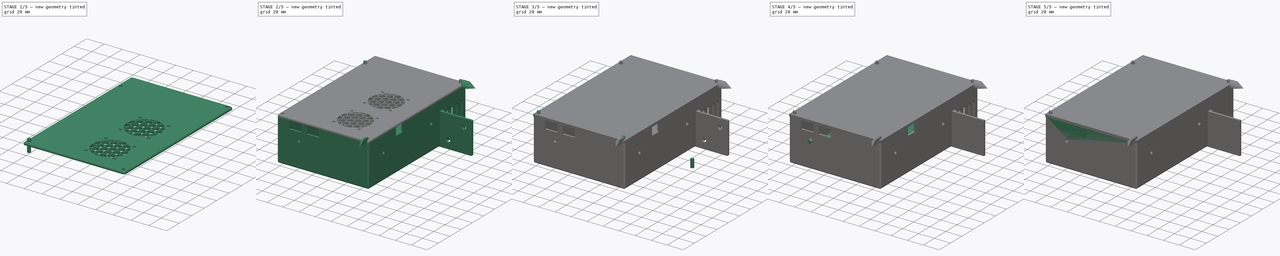
[diagram: build sequence overview — one tinted view per stage of 5, left to right]
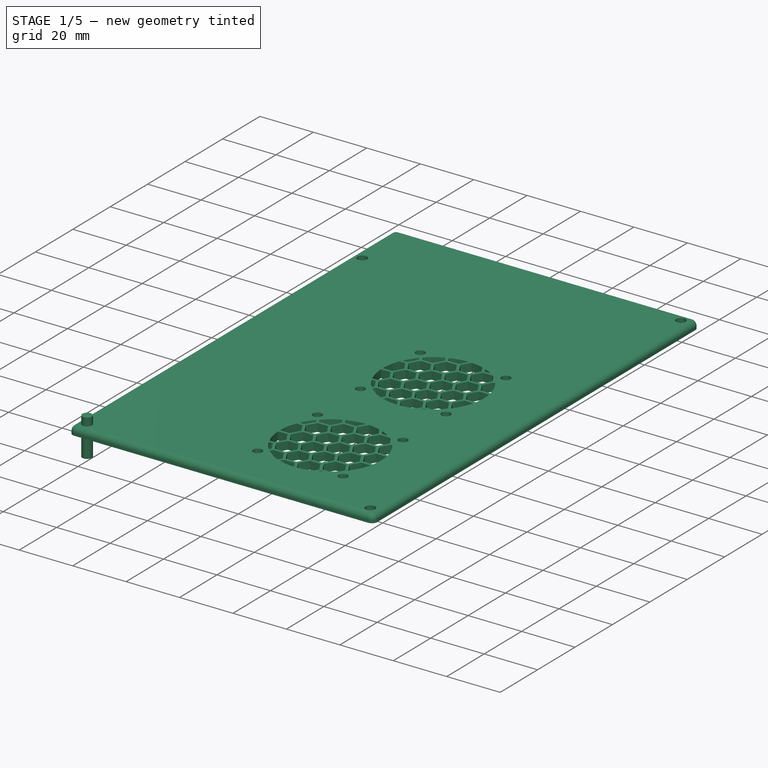
[diagram: stage 1 of 5 — iso view after this stage's code; geometry added in this stage tinted green]
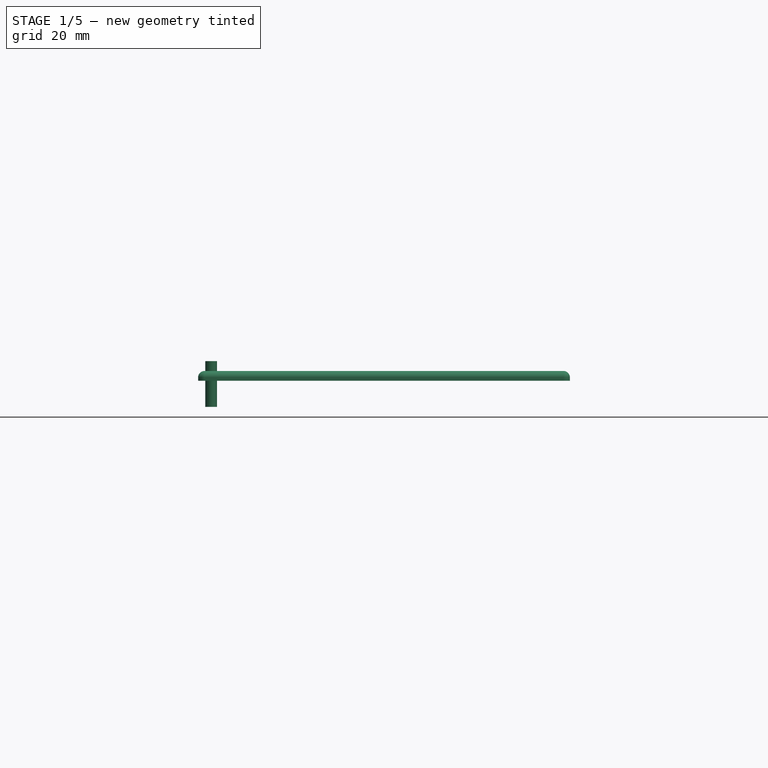
[diagram: stage 1 of 5 — front view after this stage's code; geometry added in this stage tinted green]
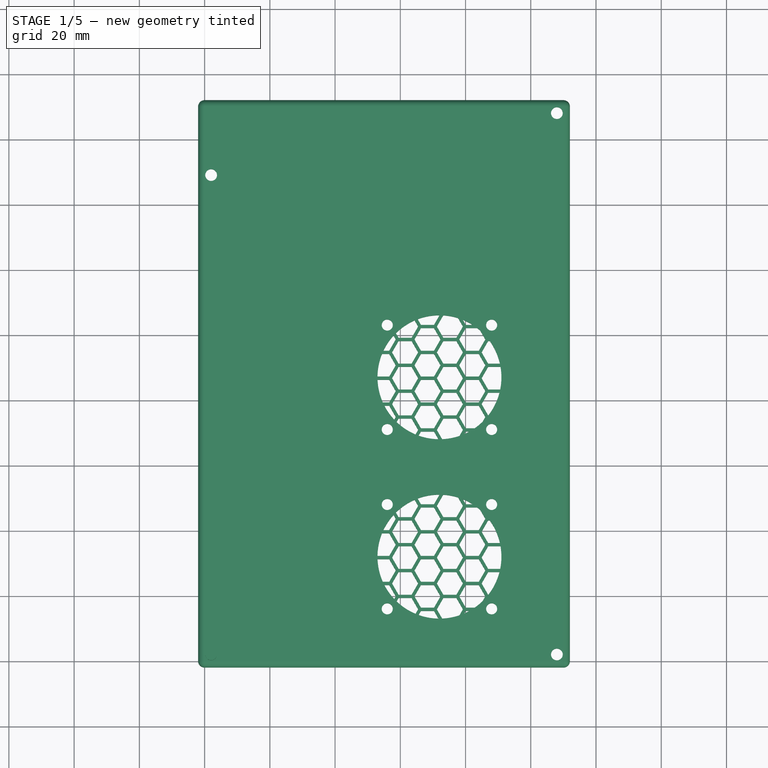
[diagram: stage 1 of 5 — top view after this stage's code; geometry added in this stage tinted green]
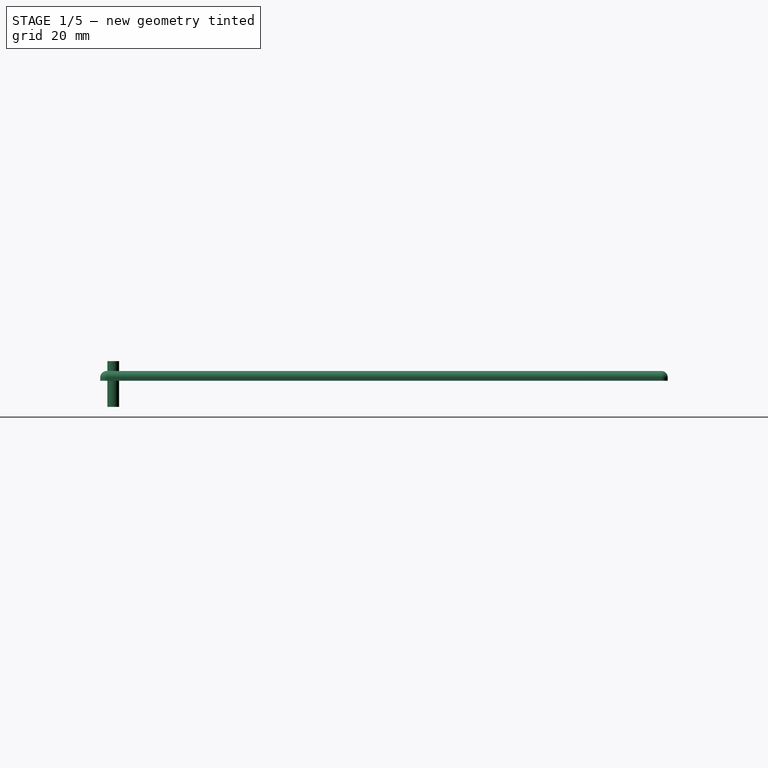
[diagram: stage 1 of 5 — right view after this stage's code; geometry added in this stage tinted green]
FCSTD DOCUMENT  (FreeCAD 0.17R13528 (Git))
Label: mks_case_v1
License: All rights reserved
LicenseURL: http://en.wikipedia.org/wiki/All_rights_reserved
objects: Part::FeaturePython×21, Part::MultiFuse×9, Part::Box×7, Part::Cylinder×7, Part::Cut×7, App::DocumentObjectGroup×4, Part::Prism×4, Part::Feature×4, Part::Fillet×3, Part::Thickness×1, Part::Cone×1, Part::Fuse×1, PartDesign::FeatureBase×1, Sketcher::SketchObject×1, PartDesign::Pocket×1, PartDesign::Body×1
note: 70 computed .brp shape members not serialized (recipe doc carries the construction recipe); baked Part::Feature solids carry a one-line shape summary decoded from their .brp

FEATURE [Part::Cylinder] Cylinder005
  Angle = 360
  AttacherType = Attacher::AttachEngine3D
  Height = 14
  Placement = pos=(2,2,42) rot=(0,0,1;0rad)
  Radius = 1.8
FEATURE [Part::Feature] Common002  label="grid stencil"
  Placement = pos=(30,0,45) rot=(0,0,1;0rad)
  shape: bbox 38 x 38 x 10 mm, 213 faces, 29 solids (baked)
FEATURE [Part::Box] Box004  label="top_001"
  AttacherType = Attacher::AttachEngine3D
  Height = 3
  Length = 114
  Placement = pos=(-2,-2,50) rot=(0,0,1;0rad)
  Width = 174
FEATURE [Part::Cylinder] Cylinder006
  Angle = 360
  AttacherType = Attacher::AttachEngine3D
  Height = 14
  Placement = pos=(2,2,42) rot=(0,0,1;0rad)
  Radius = 1.8
FEATURE [Part::FeaturePython] Clone016  label="Clone of Cylinder013"  # Draft clone (typed FeaturePython)
  Objects = -> [Cylinder006]
  Placement = pos=(108,2,42) rot=(0,0,1;0rad)
  Scale = (1,1,1)
FEATURE [Part::FeaturePython] Clone017  label="Clone of Cylinder014"  # Draft clone (typed FeaturePython)
  Objects = -> [Cylinder006]
  Placement = pos=(2,149,42) rot=(0,0,1;0rad)
  Scale = (1,1,1)
FEATURE [Part::FeaturePython] Clone018  label="Clone of Cylinder015"  # Draft clone (typed FeaturePython)
  Objects = -> [Cylinder006]
  Placement = pos=(108,168,42) rot=(0,0,1;0rad)
  Scale = (1,1,1)
FEATURE [Part::MultiFuse] Fusion008  label="top mount hole cutouts003"
  Refine = true
  Shapes = -> [Cylinder006,Clone016,Clone018,Clone017]
FEATURE [Part::Feature] Common003  label="grid stencil001"
  Placement = pos=(30,55,45) rot=(0,0,1;0rad)
  shape: bbox 38 x 38 x 10 mm, 213 faces, 29 solids (baked)
FEATURE [Part::Cut] Cut005
  Base = -> Box004
  Refine = true
  Tool = -> Fusion008
FEATURE [Part::Cut] Cut006
  Base = -> Cut005
  Refine = true
  Tool = -> Common003
FEATURE [Part::Cut] Cut007
  Base = -> Cut006
  Refine = true
  Tool = -> Common002
FEATURE [PartDesign::FeatureBase] BaseFeature
  BaseFeature = -> Cut007
FEATURE [Sketcher::SketchObject] Sketch
  MapMode = 5
  Placement = pos=(0,0,53) rot=(0,0,1;0rad)
  Support = -> [BaseFeature]
  sketch-geometry (16):
    g0: Circle CenterX=56 CenterY=48 CenterZ=0 NormalX=0 NormalY=0 NormalZ=1 AngleXU=0 Radius=1.7
    g1: Circle CenterX=88 CenterY=48 CenterZ=0 NormalX=0 NormalY=0 NormalZ=1 AngleXU=0 Radius=1.7
    g2: Circle CenterX=88 CenterY=16 CenterZ=0 NormalX=0 NormalY=0 NormalZ=1 AngleXU=0 Radius=1.7
    g3: Circle CenterX=56 CenterY=16 CenterZ=0 NormalX=0 NormalY=0 NormalZ=1 AngleXU=0 Radius=1.7
    g4: Circle CenterX=56 CenterY=71 CenterZ=0 NormalX=0 NormalY=0 NormalZ=1 AngleXU=0 Radius=1.7
    g5: Circle CenterX=88 CenterY=71 CenterZ=0 NormalX=0 NormalY=0 NormalZ=1 AngleXU=0 Radius=1.7
    g6: Circle CenterX=88 CenterY=103 CenterZ=0 NormalX=0 NormalY=0 NormalZ=1 AngleXU=0 Radius=1.7
    g7: Circle CenterX=56 CenterY=103 CenterZ=0 NormalX=0 NormalY=0 NormalZ=1 AngleXU=0 Radius=1.7
    g8: LineSegment [constr] StartX=56 StartY=103 StartZ=0 EndX=88 EndY=103 EndZ=0
    g9: LineSegment [constr] StartX=88 StartY=103 StartZ=0 EndX=88 EndY=71 EndZ=0
    g10: LineSegment [constr] StartX=88 StartY=71 StartZ=0 EndX=56 EndY=71 EndZ=0
    g11: LineSegment [constr] StartX=56 StartY=71 StartZ=0 EndX=56 EndY=103 EndZ=0
    g12: LineSegment [constr] StartX=56 StartY=48 StartZ=0 EndX=88 EndY=48 EndZ=0
    g13: LineSegment [constr] StartX=88 StartY=48 StartZ=0 EndX=88 EndY=16 EndZ=0
    g14: LineSegment [constr] StartX=88 StartY=16 StartZ=0 EndX=56 EndY=16 EndZ=0
    g15: LineSegment [constr] StartX=56 StartY=16 StartZ=0 EndX=56 EndY=48 EndZ=0
  constraints (40):
    c: Radius(g7) = 1.7
    c: Equal(g7,g6)
    c: Equal(g6,g5)
    c: Equal(g5,g4)
    c: Equal(g7,g0)
    c: Equal(g0,g1)
    c: Equal(g1,g2)
    c: Equal(g2,g3)
    c: Coincident(g8,g9)
    c: Coincident(g9,g10)
    c: Coincident(g10,g11)
    c: Coincident(g11,g8)
    c: Horizontal(g8)
    c: Horizontal(g10)
    c: Vertical(g9)
    c: Vertical(g11)
    c: Equal(g8,g11)
    c: DistanceX(g8,g8) = 32
    c: Coincident(g7,g8)
    c: Coincident(g6,g8)
    c: Coincident(g5,g9)
    c: Coincident(g4,g10)
    c: Coincident(g12,g13)
    c: Coincident(g13,g14)
    c: Coincident(g14,g15)
    c: Coincident(g15,g12)
    c: Horizontal(g12)
    c: Horizontal(g14)
    c: Vertical(g13)
    c: Vertical(g15)
    c: Equal(g12,g15)
    c: Equal(g15,g10)
    c: Coincident(g0,g12)
    c: Coincident(g1,g12)
    c: Coincident(g3,g14)
    c: Coincident(g2,g13)
    c: DistanceX(g-1,g3) = 56
    c: DistanceX(g-1,g4) = 56
    c: DistanceY(g3,g4) = 55
    c: DistanceY(g-1,g3) = 16
FEATURE [PartDesign::Pocket] Pocket
  BaseFeature = -> BaseFeature
  Length = 3
  Length2 = 100
  Profile = -> Sketch
  Refine = true
  Type = 0
FEATURE [PartDesign::Body] Body
  BaseFeature = -> Cut007
  Group = -> [BaseFeature,Sketch,Pocket]
  Origin = -> Origin
  Tip = -> Pocket
FEATURE [App::DocumentObjectGroup] Group004  label="simple_top_parts"
  Group = -> [Cut003,Cut007,Body]
FEATURE [Part::Fillet] Fillet002  label="simple top with grid"
  Base = -> Pocket
  Edges = 8 edges r=2: [Edge1,Edge2,Edge3,Edge6,Edge7,Edge8,Edge9,Edge333]
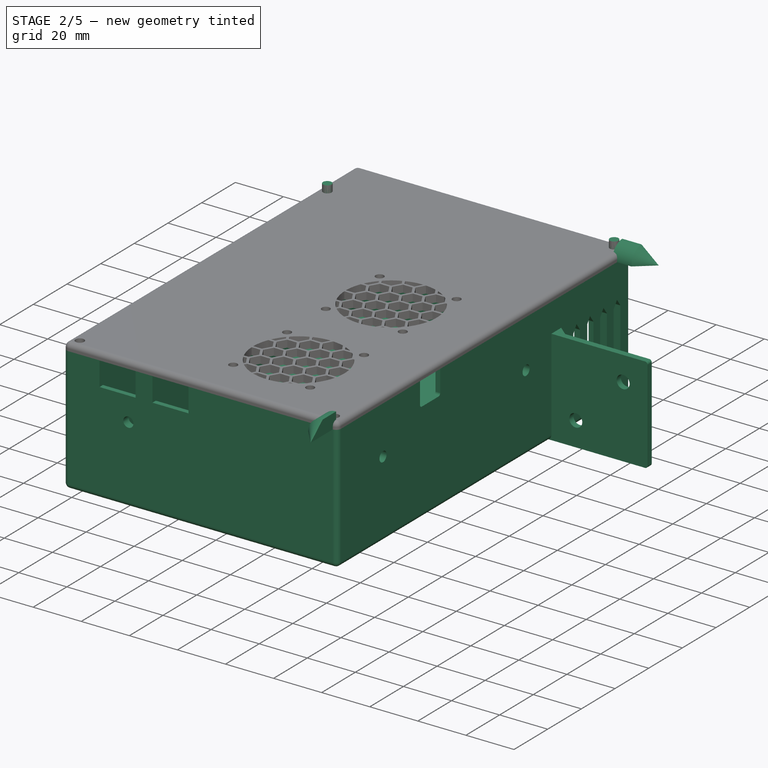
[diagram: stage 2 of 5 — iso view after this stage's code; geometry added in this stage tinted green]
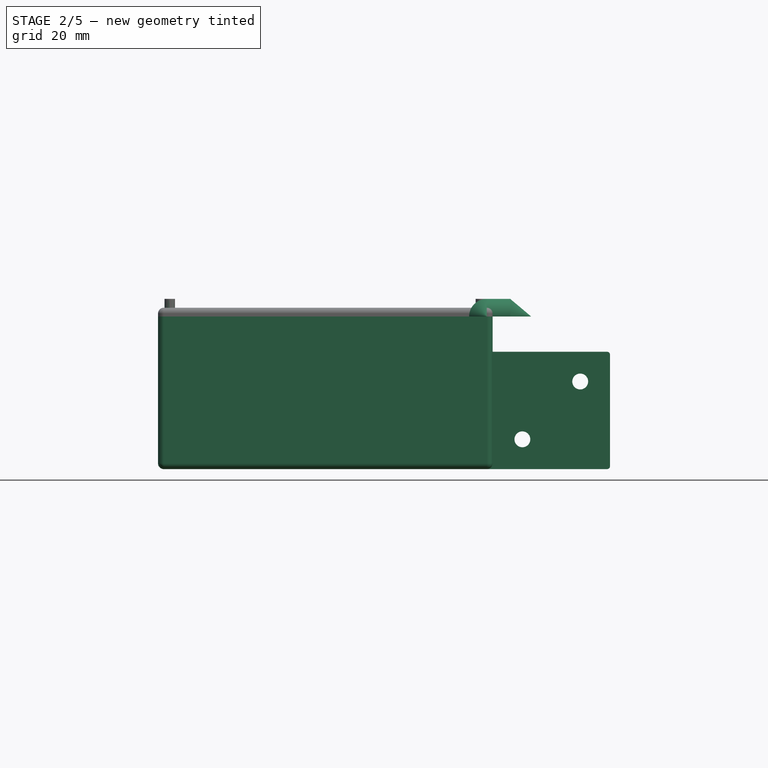
[diagram: stage 2 of 5 — front view after this stage's code; geometry added in this stage tinted green]
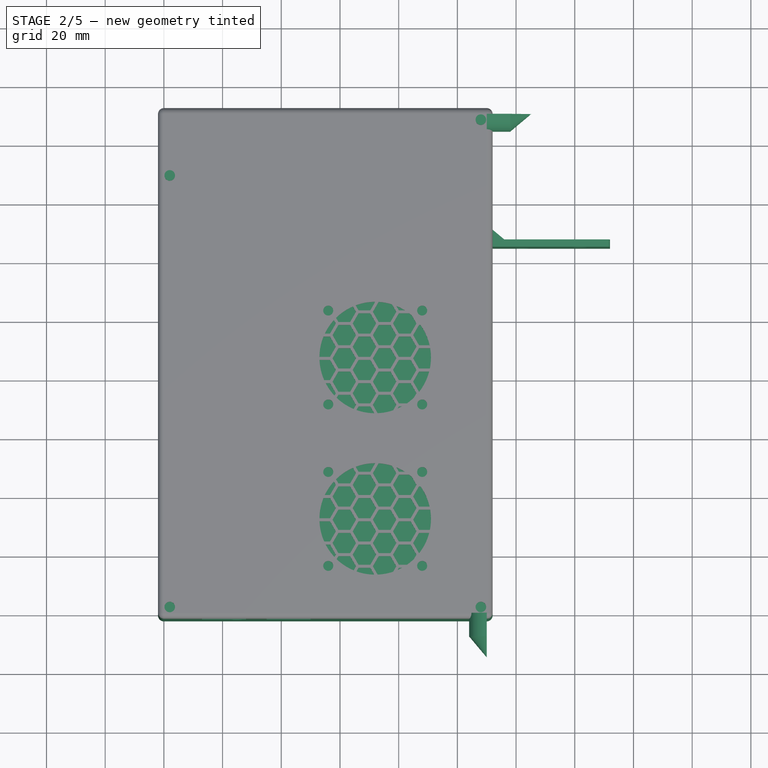
[diagram: stage 2 of 5 — top view after this stage's code; geometry added in this stage tinted green]
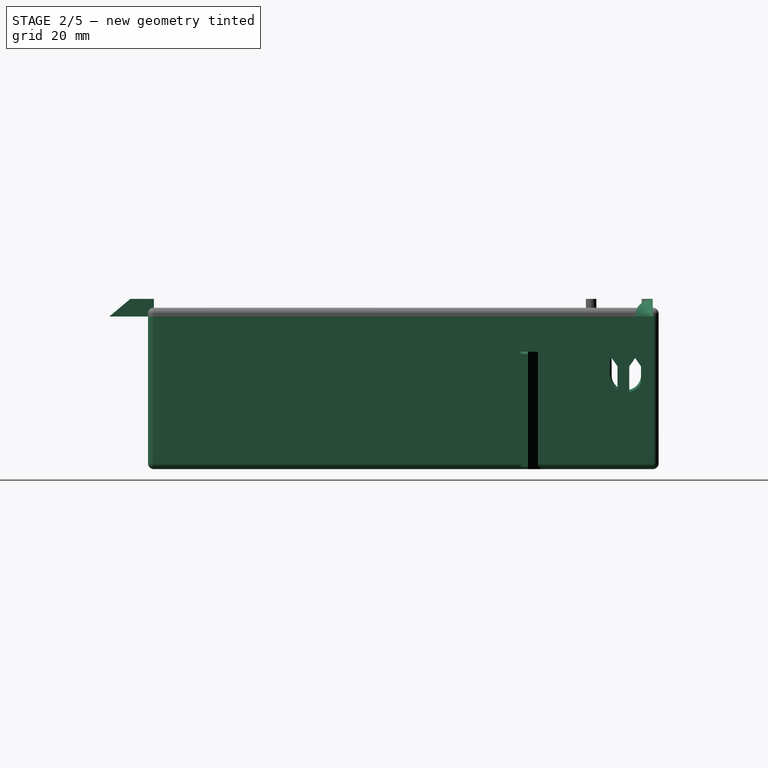
[diagram: stage 2 of 5 — right view after this stage's code; geometry added in this stage tinted green]
FEATURE [App::DocumentObjectGroup] Group  label="bottom_parts"
  Group = -> [Cut,Fusion002]
FEATURE [Part::Fillet] Fillet  label="Fillet Cable cutout and more"
  Edges = 10 edges: [Edge108 r=1,Edge110 r=1,Edge233 r=2,Edge234 r=2,Edge235 r=2,Edge245 r=1,Edge247 r=1,Edge248 r=1,Edge272 r=1,Edge389 r=1]
FEATURE [Part::FeaturePython] Clone004  label="Clone of corner_mount"  # WARN: FeaturePython — macro-defined, semantics opaque (R4)
  Placement = pos=(110,0,50) rot=(0,0.707107,0.707107;3.14159rad)
  Scale = (1,1,1)
FEATURE [Part::FeaturePython] Clone005  label="Clone of corner_mount001"  # WARN: FeaturePython — macro-defined, semantics opaque (R4)
  Placement = pos=(110,170,50) rot=(0.57735,-0.57735,-0.57735;2.0944rad)
  Scale = (1,1,1)
FEATURE [App::DocumentObjectGroup] Group003  label="top_parts_temp"
  Group = -> [Box003,Fusion003]
FEATURE [Part::MultiFuse] Fusion004  label="case with top mounts"
  Refine = true
  Shapes = -> [Clone005,Clone004,Fillet]
FEATURE [App::DocumentObjectGroup] Konstruktion
  Group = -> [Clone009,Fusion005]
FEATURE [Part::Feature] Cut002
  shape: bbox 114 x 174 x 3 mm, 16 faces (baked)
FEATURE [Part::Cylinder] Cylinder004
  Angle = 360
  AttacherType = Attacher::AttachEngine3D
  Height = 14
  Placement = pos=(2,2,42) rot=(0,0,1;0rad)
  Radius = 1.8
FEATURE [Part::FeaturePython] Clone011  label="Clone of Cylinder008"  # Draft clone (typed FeaturePython)
  Objects = -> [Cylinder004]
  Placement = pos=(108,168,42) rot=(0,0,1;0rad)
  Scale = (1,1,1)
FEATURE [Part::FeaturePython] Clone012  label="Clone of Cylinder009"  # Draft clone (typed FeaturePython)
  Objects = -> [Cylinder004]
  Placement = pos=(2,149,42) rot=(0,0,1;0rad)
  Scale = (1,1,1)
FEATURE [Part::FeaturePython] Clone013  label="Clone of Cylinder010"  # Draft clone (typed FeaturePython)
  Objects = -> [Cylinder005]
  Placement = pos=(108,2,42) rot=(0,0,1;0rad)
  Scale = (1,1,1)
FEATURE [Part::FeaturePython] Clone014  label="Clone of Cylinder011"  # Draft clone (typed FeaturePython)
  Objects = -> [Cylinder005]
  Placement = pos=(108,168,42) rot=(0,0,1;0rad)
  Scale = (1,1,1)
FEATURE [Part::FeaturePython] Clone015  label="Clone of Cylinder012"  # Draft clone (typed FeaturePython)
  Objects = -> [Cylinder005]
  Placement = pos=(2,149,42) rot=(0,0,1;0rad)
  Scale = (1,1,1)
FEATURE [Part::MultiFuse] Fusion007  label="top mount hole cutouts002"
  Refine = true
  Shapes = -> [Cylinder005,Clone013,Clone014,Clone015]
FEATURE [Part::Cut] Cut004  label="bottom part"
  Base = -> Fusion004
  Refine = true
  Tool = -> Fusion007
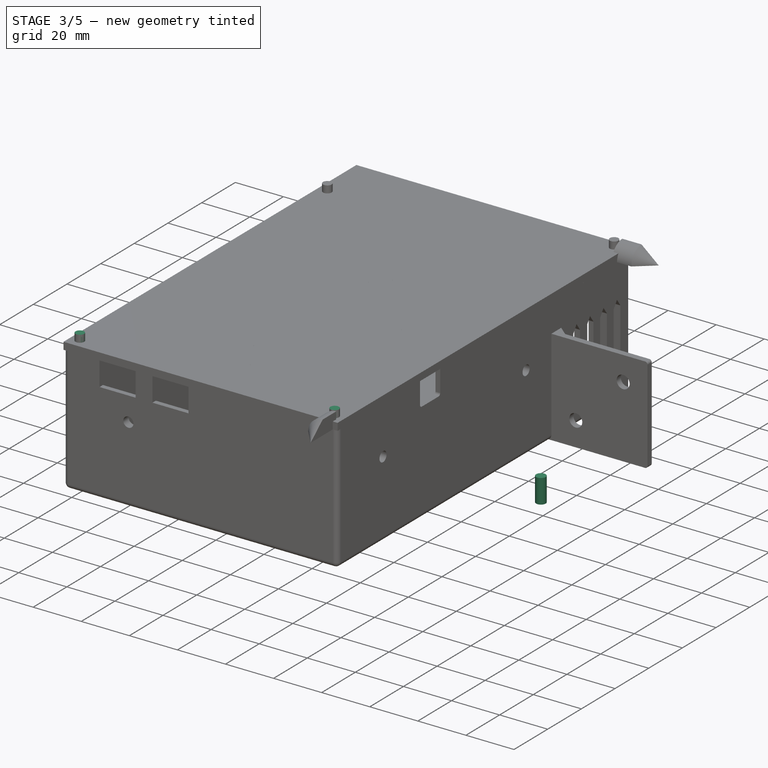
[diagram: stage 3 of 5 — iso view after this stage's code; geometry added in this stage tinted green]
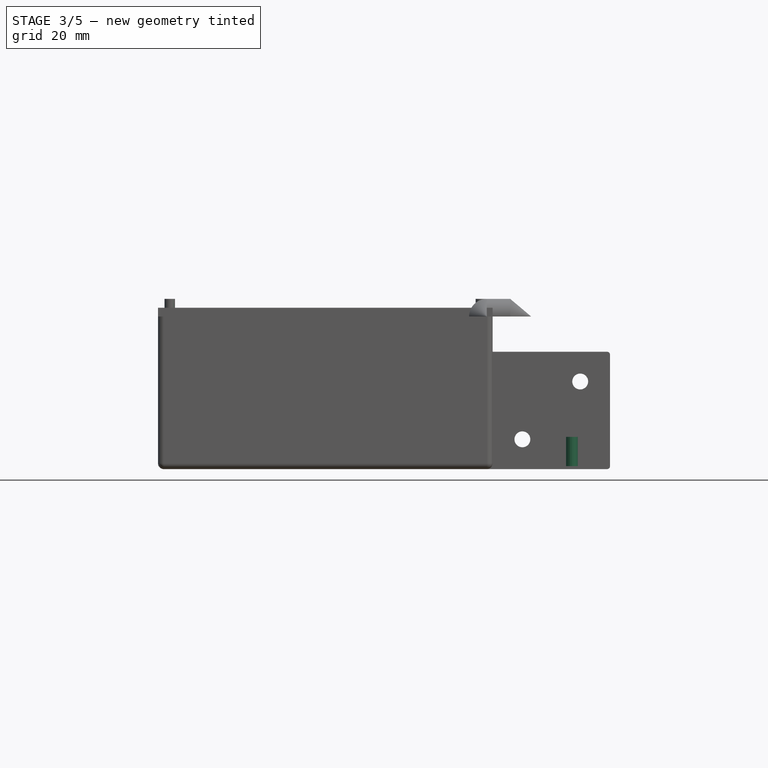
[diagram: stage 3 of 5 — front view after this stage's code; geometry added in this stage tinted green]
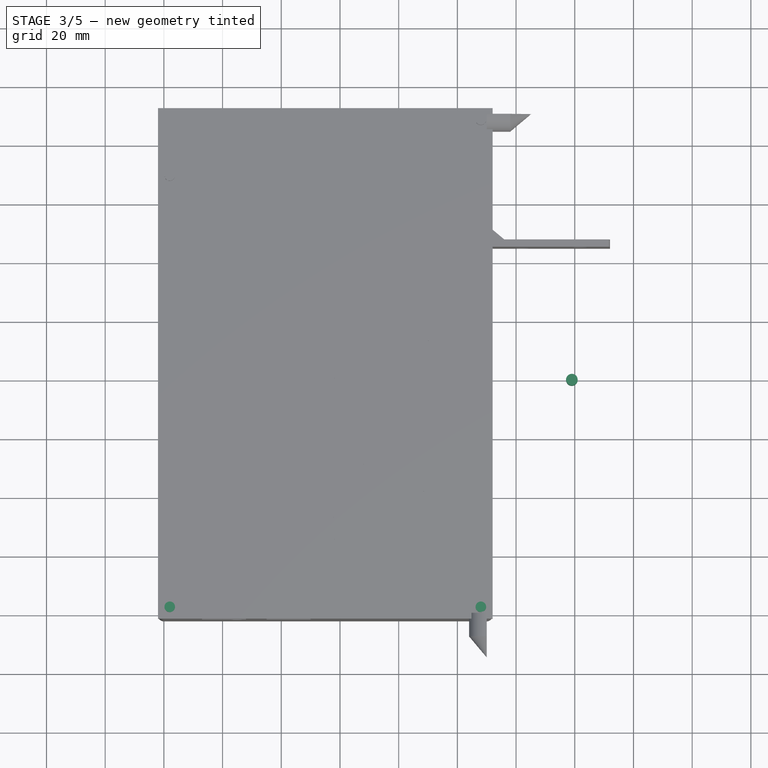
[diagram: stage 3 of 5 — top view after this stage's code; geometry added in this stage tinted green]
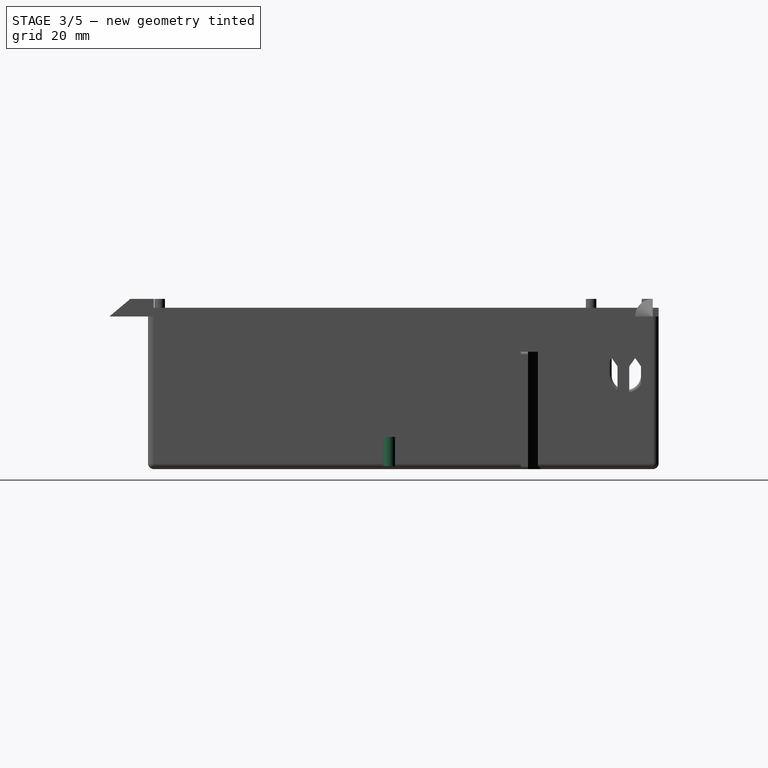
[diagram: stage 3 of 5 — right view after this stage's code; geometry added in this stage tinted green]
FEATURE [Part::Prism] prism002
  AttacherType = Attacher::AttachEngine3D
  Circumradius = 2
  Height = 10
  Placement = pos=(4,80.23,-1) rot=(0,0,1;0rad)
  Polygon = 20
FEATURE [Part::Prism] prism003
  AttacherType = Attacher::AttachEngine3D
  Circumradius = 2
  Height = 10
  Placement = pos=(139,80.23,-1) rot=(0,0,1;0rad)
  Polygon = 20
FEATURE [Part::Cylinder] Cylinder003
  Angle = 360
  AttacherType = Attacher::AttachEngine3D
  Height = 14
  Placement = pos=(2,2,42) rot=(0,0,1;0rad)
  Radius = 1.8
FEATURE [Part::FeaturePython] Clone006  label="Clone of Cylinder004"  # Draft clone (typed FeaturePython)
  Objects = -> [Cylinder003]
  Placement = pos=(108,2,42) rot=(0,0,1;0rad)
  Scale = (1,1,1)
FEATURE [Part::FeaturePython] Clone007  label="Clone of Cylinder005"  # Draft clone (typed FeaturePython)
  Objects = -> [Cylinder003]
  Placement = pos=(108,168,42) rot=(0,0,1;0rad)
  Scale = (1,1,1)
FEATURE [Part::FeaturePython] Clone008  label="Clone of Cylinder006"  # Draft clone (typed FeaturePython)
  Objects = -> [Cylinder003]
  Placement = pos=(2,149,42) rot=(0,0,1;0rad)
  Scale = (1,1,1)
FEATURE [Part::MultiFuse] Fusion003  label="top mount hole cutouts"
  Refine = true
  Shapes = -> [Cylinder003,Clone006,Clone007,Clone008]
FEATURE [Part::Box] Box003  label="top_"
  AttacherType = Attacher::AttachEngine3D
  Height = 3
  Length = 114
  Placement = pos=(-2,-2,50) rot=(0,0,1;0rad)
  Width = 174
FEATURE [Part::Feature] Fusion005  label="fan-40x40mm-final"
  Placement = pos=(72,32,40) rot=(0,0,1;0rad)
  shape: bbox 40 x 40 x 10 mm, 172 faces (baked)
FEATURE [Part::FeaturePython] Clone009  label="Clone of fan-40x40mm-final"  # Draft clone (typed FeaturePython)
  Objects = -> [Fusion005]
  Placement = pos=(72,87,40) rot=(0,0,1;0rad)
  Scale = (1,1,1)
FEATURE [Part::FeaturePython] Clone010  label="Clone of Cylinder007"  # Draft clone (typed FeaturePython)
  Objects = -> [Cylinder004]
  Placement = pos=(108,2,42) rot=(0,0,1;0rad)
  Scale = (1,1,1)
FEATURE [Part::MultiFuse] Fusion006  label="top mount hole cutouts001"
  Refine = true
  Shapes = -> [Cylinder004,Clone010,Clone011,Clone012]
FEATURE [Part::Cut] Cut003
  Base = -> Cut002
  Refine = true
  Tool = -> Fusion006
FEATURE [Part::Fillet] Fillet001  label="simple top"
  Base = -> Cut003
  Edges = 8 edges r=2: [Edge1,Edge2,Edge3,Edge6,Edge7,Edge8,Edge9,Edge25]
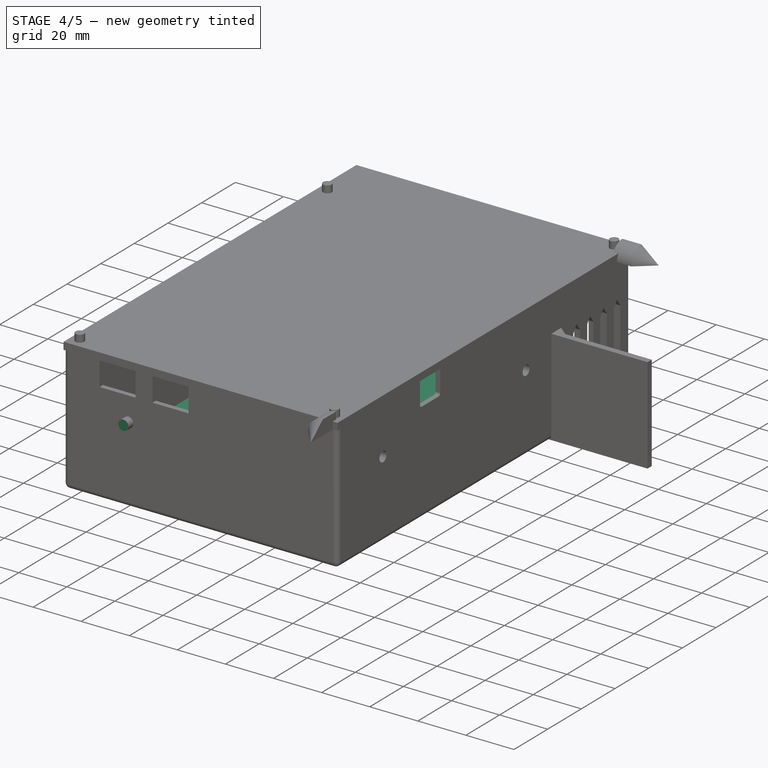
[diagram: stage 4 of 5 — iso view after this stage's code; geometry added in this stage tinted green]
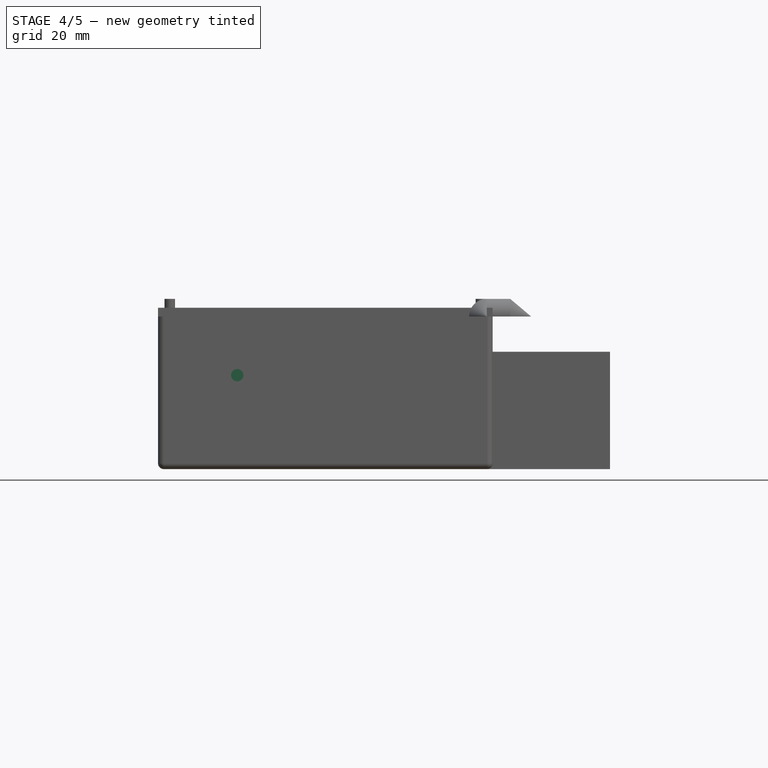
[diagram: stage 4 of 5 — front view after this stage's code; geometry added in this stage tinted green]
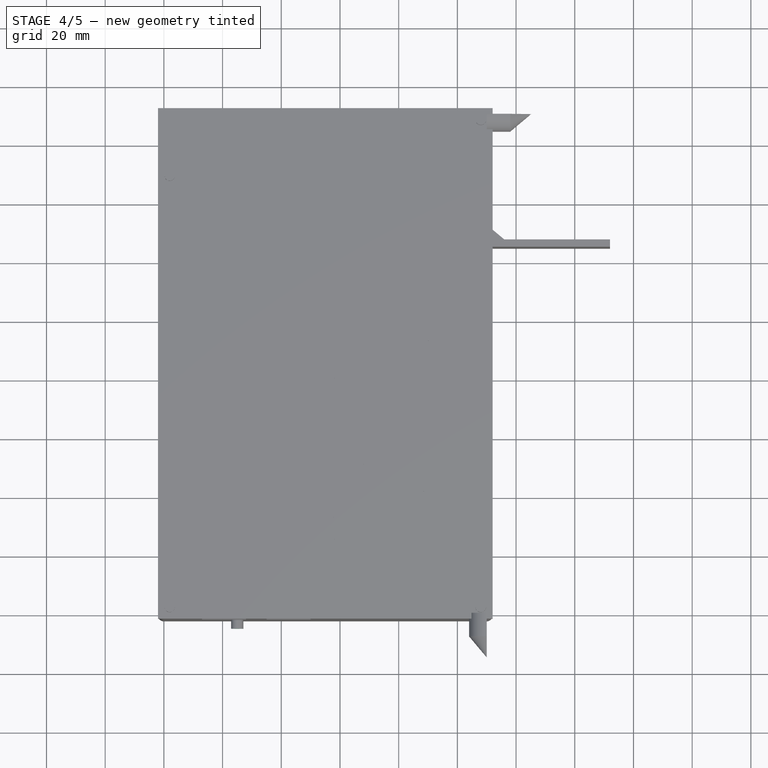
[diagram: stage 4 of 5 — top view after this stage's code; geometry added in this stage tinted green]
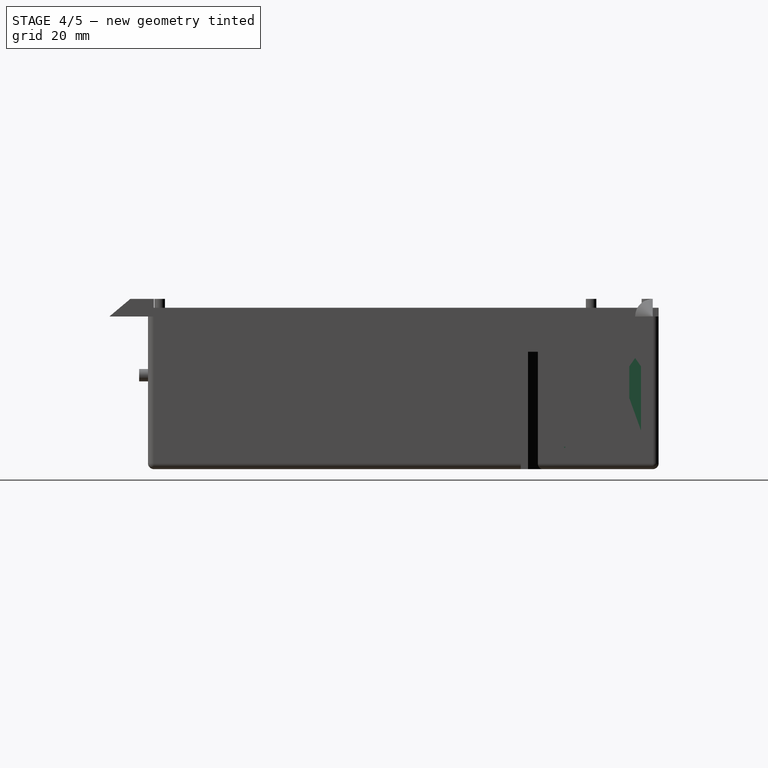
[diagram: stage 4 of 5 — right view after this stage's code; geometry added in this stage tinted green]
FEATURE [Part::Cylinder] Cylinder002
  Angle = 360
  AttacherType = Attacher::AttachEngine3D
  Height = 10
  Placement = pos=(108,25,30) rot=(0,1,0;1.5708rad)
  Radius = 2.1
FEATURE [Part::FeaturePython] Clone003  label="Clone of Cylinder003"  # Draft clone (typed FeaturePython)
  Objects = -> [Cylinder002]
  Placement = pos=(25,5,30) rot=(1,0,0;1.5708rad)
  Scale = (1,1,1)
FEATURE [Part::Box] Box001  label="Flansch"
  AttacherType = Attacher::AttachEngine3D
  Height = 40
  Length = 42
  Placement = pos=(110,125,-2) rot=(0,0,1;0rad)
  Width = 2.5
FEATURE [Part::Box] Box002  label="Cube001"
  AttacherType = Attacher::AttachEngine3D
  Height = 50
  Length = 3
  Placement = pos=(0,152,0) rot=(0,0,1;0rad)
  Width = 18
FEATURE [Part::MultiFuse] Fusion002
  Refine = true
  Shapes = -> [Box002,Box001]
FEATURE [Part::Box] cube
  AttacherType = Attacher::AttachEngine3D
  Height = 1.6
  Length = 143
  Width = 84.23
FEATURE [Part::Box] cube001
  AttacherType = Attacher::AttachEngine3D
  Height = 10.85
  Length = 12
  Placement = pos=(21.71,0,0) rot=(0,0,1;0rad)
  Width = 16.5
FEATURE [Part::Fuse] Group001
  Base = -> cube
  Refine = true
  Tool = -> cube001
FEATURE [Part::Prism] prism
  AttacherType = Attacher::AttachEngine3D
  Circumradius = 2
  Height = 10
  Placement = pos=(4,4,-1) rot=(0,0,1;0rad)
  Polygon = 20
FEATURE [Part::Prism] prism001
  AttacherType = Attacher::AttachEngine3D
  Circumradius = 2
  Height = 10
  Placement = pos=(139,4,-1) rot=(0,0,1;0rad)
  Polygon = 20
FEATURE [Part::MultiFuse] Group002
  Refine = true
  Shapes = -> [prism,prism001,prism002,prism003]
FEATURE [Part::Cut] difference  label="mks gen 14 dummy"
  Base = -> Group001
  Placement = pos=(0.5,147,4) rot=(0,0,-1;1.5708rad)
  Refine = true
  Tool = -> Group002
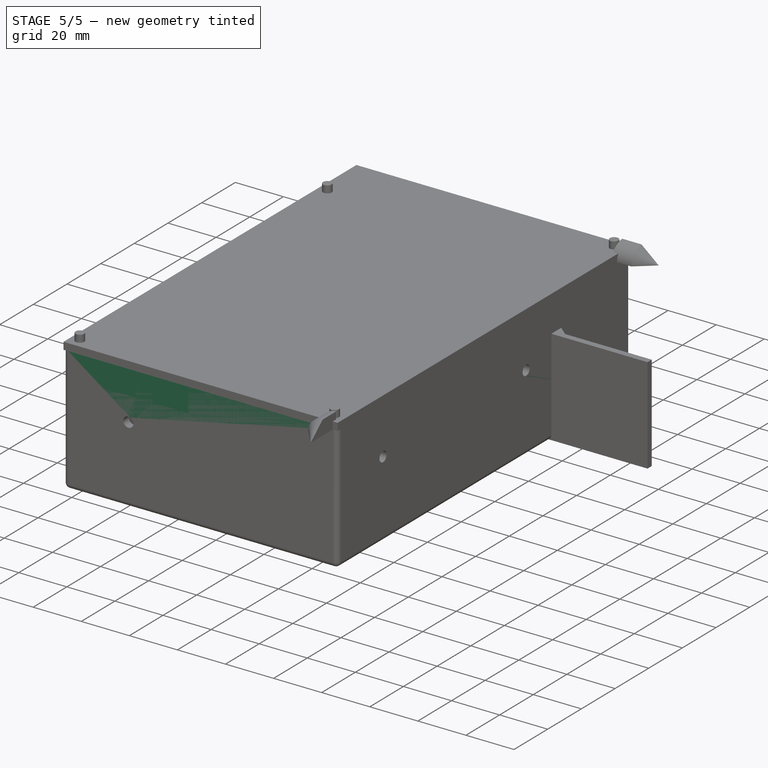
[diagram: stage 5 of 5 — iso view after this stage's code; geometry added in this stage tinted green]
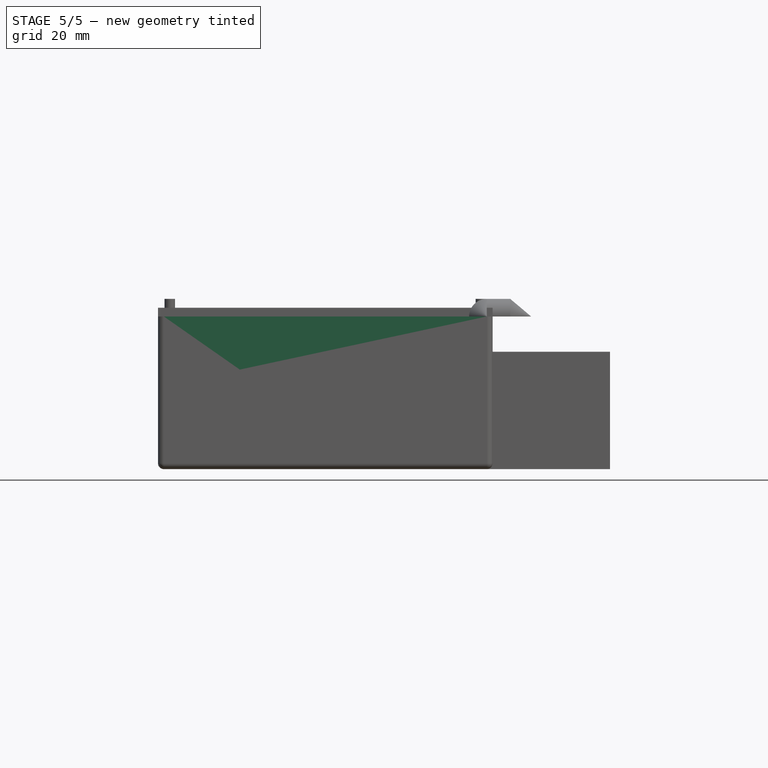
[diagram: stage 5 of 5 — front view after this stage's code; geometry added in this stage tinted green]
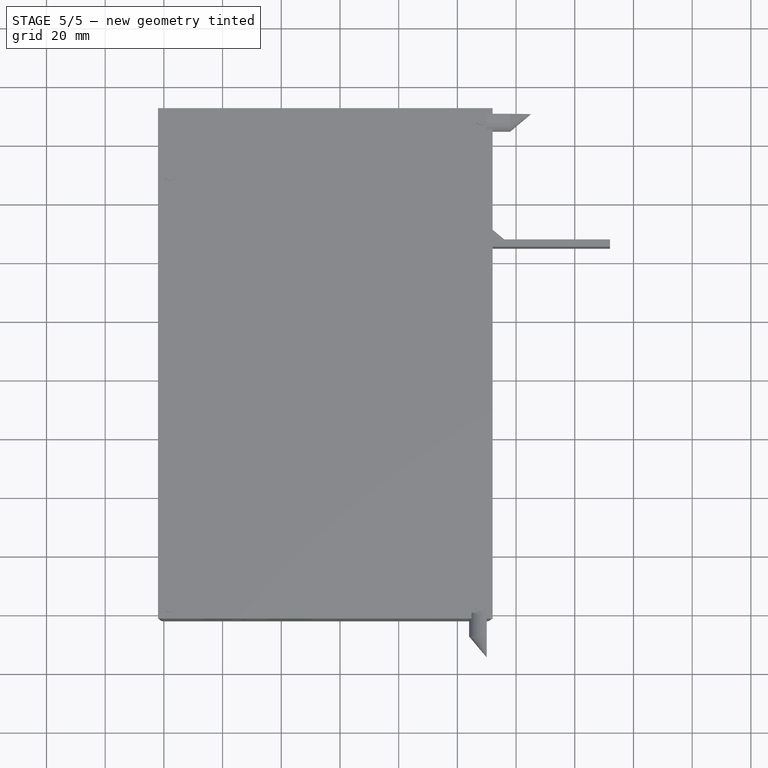
[diagram: stage 5 of 5 — top view after this stage's code; geometry added in this stage tinted green]
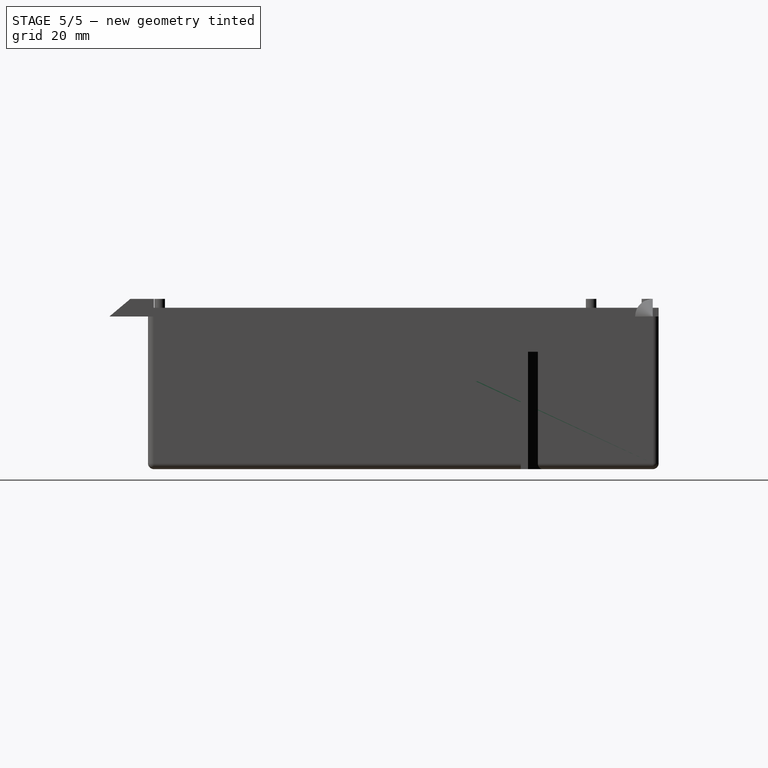
[diagram: stage 5 of 5 — right view after this stage's code; geometry added in this stage tinted green]
FEATURE [Part::Box] Box  label="Cube"
  AttacherType = Attacher::AttachEngine3D
  Height = 50
  Length = 110
  Width = 170
FEATURE [Part::Thickness] Thickness  label="empty_case"
  Faces = -> Box [Face6]
  Intersection = false
  Join = 0
  Mode = 0
  SelfIntersection = false
  Value = 2
FEATURE [Part::Cylinder] Cylinder
  Angle = 360
  AttacherType = Attacher::AttachEngine3D
  Height = 3.5
  Radius = 3.5
FEATURE [Part::Cylinder] Cylinder001
  Angle = 360
  AttacherType = Attacher::AttachEngine3D
  Height = 7
  Placement = pos=(0,0,-3) rot=(0,0,1;0rad)
  Radius = 1.6
FEATURE [Part::FeaturePython] Array  label="mount_points"  # Draft array (typed FeaturePython)
  Angle = 360
  ArrayType = 0
  Axis = (0,0,1)
  Base = -> Cylinder
  Center = (0,0,0)
  Fuse = false
  IntervalAxis = (0,0,0)
  IntervalX = (76,0,0)
  IntervalY = (0,135,0)
  IntervalZ = (0,0,0)
  NumberPolar = 1
  NumberX = 2
  NumberY = 2
  NumberZ = 1
  Placement = pos=(4.5,8,0) rot=(0,0,1;0rad)
FEATURE [Part::FeaturePython] Array001  label="mount_holes"  # Draft array (typed FeaturePython)
  Angle = 360
  ArrayType = 0
  Axis = (0,0,1)
  Base = -> Cylinder001
  Center = (0,0,0)
  Fuse = false
  IntervalAxis = (0,0,0)
  IntervalX = (76,0,0)
  IntervalY = (0,135,0)
  IntervalZ = (0,0,0)
  NumberPolar = 1
  NumberX = 2
  NumberY = 2
  NumberZ = 1
  Placement = pos=(4.5,8,0) rot=(0,0,1;0rad)
FEATURE [Part::Cone] Cone
  Angle = 360
  AttacherType = Attacher::AttachEngine3D
  Height = 1.2
  Placement = pos=(110,25,30) rot=(0,-1,0;1.5708rad)
  Radius1 = 8
  Radius2 = 4
FEATURE [Part::FeaturePython] Clone  label="Clone of Cone"  # Draft clone (typed FeaturePython)
  Objects = -> [Cone]
  Placement = pos=(110,110,30) rot=(0,-1,0;1.5708rad)
  Scale = (1,1,1)
FEATURE [Part::FeaturePython] Clone001  label="Clone of Cylinder002"  # Draft clone (typed FeaturePython)
  Objects = -> [Cylinder002]
  Placement = pos=(108,110,30) rot=(0,1,0;1.5708rad)
  Scale = (1,1,1)
FEATURE [Part::FeaturePython] Clone002  label="Clone of Cone001"  # Draft clone (typed FeaturePython)
  Objects = -> [Cone]
  Placement = pos=(25,0,30) rot=(-1,0,0;1.5708rad)
  Scale = (1,1,1)
FEATURE [Part::MultiFuse] Fusion
  Refine = true
  Shapes = -> [Thickness,Array,Clone,Cone,Clone002]
FEATURE [Part::MultiFuse] Fusion001
  Refine = true
  Shapes = -> [Clone003,Clone001,Cylinder002,Array001]
FEATURE [Part::Cut] Cut  label="case with mount holes"
  Base = -> Fusion
  Refine = true
  Tool = -> Fusion001
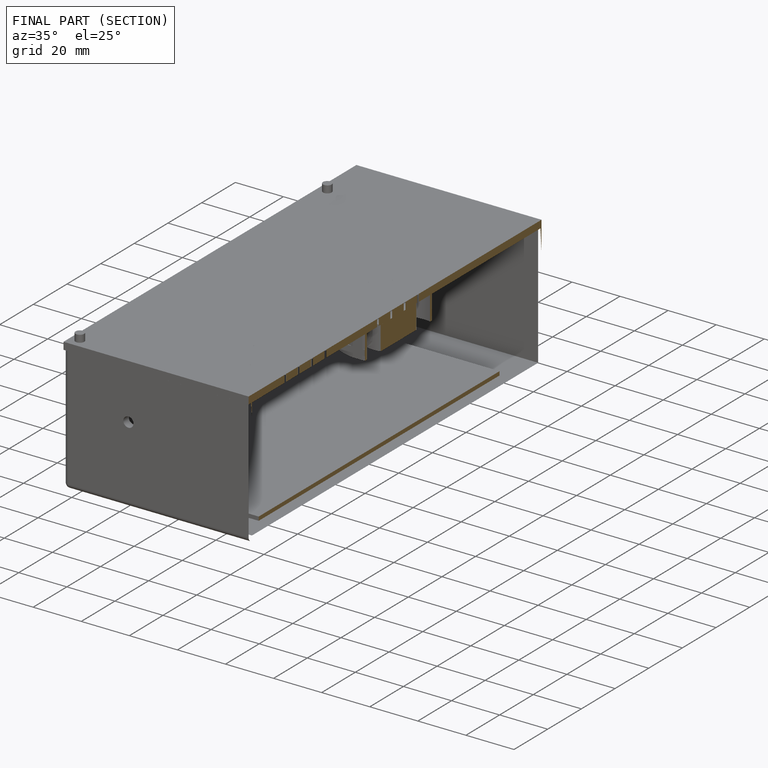
[diagram: finished part — half-section view (interior)]
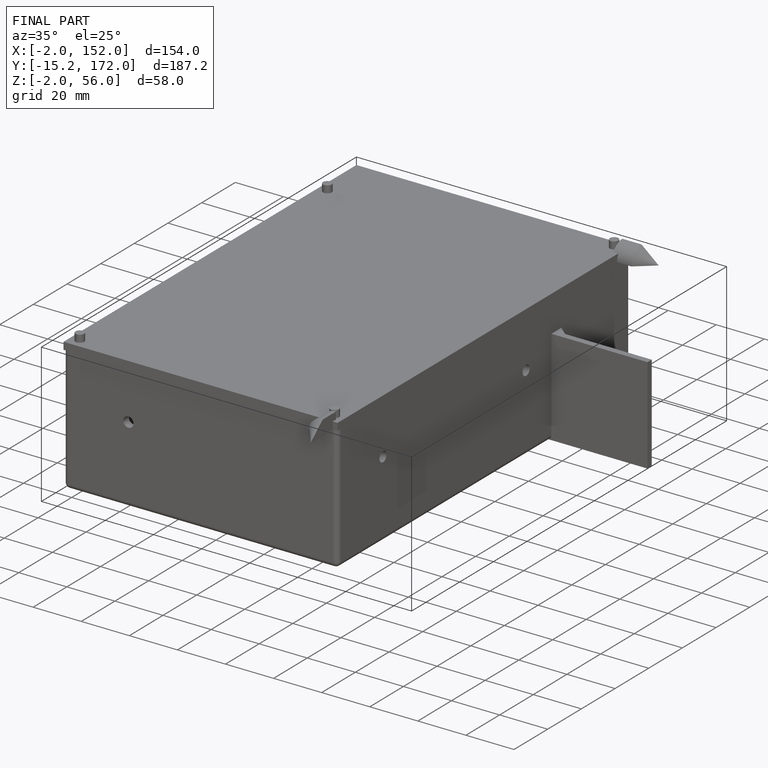
[diagram: finished part — iso view with bounding-box wireframe]
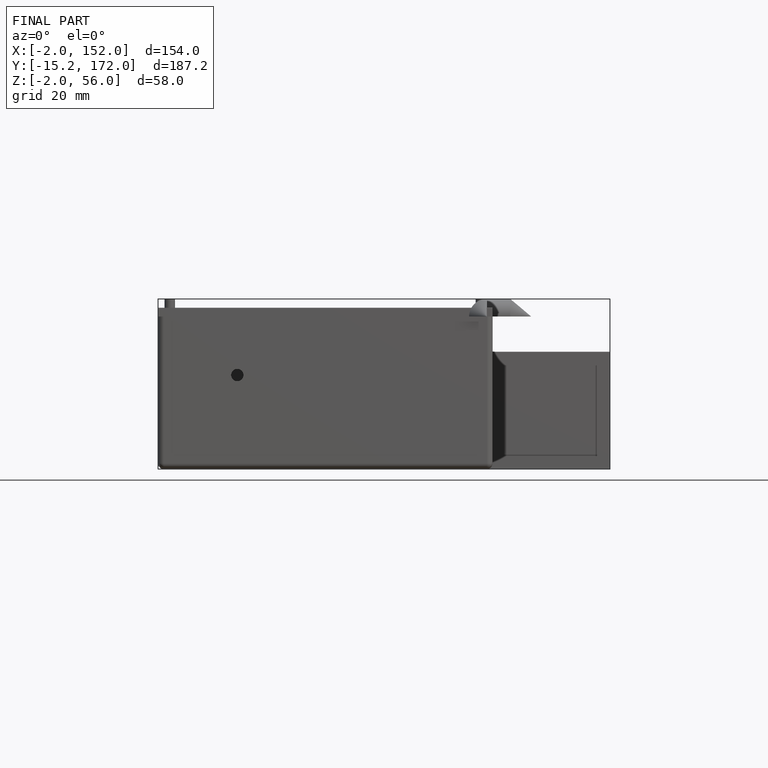
[diagram: finished part — front view with bounding-box wireframe]
